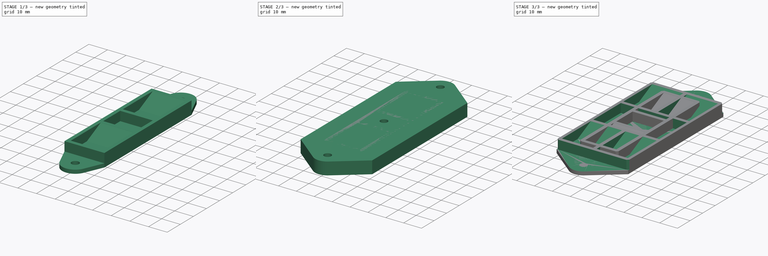
[diagram: build sequence overview — one tinted view per stage of 3, left to right]
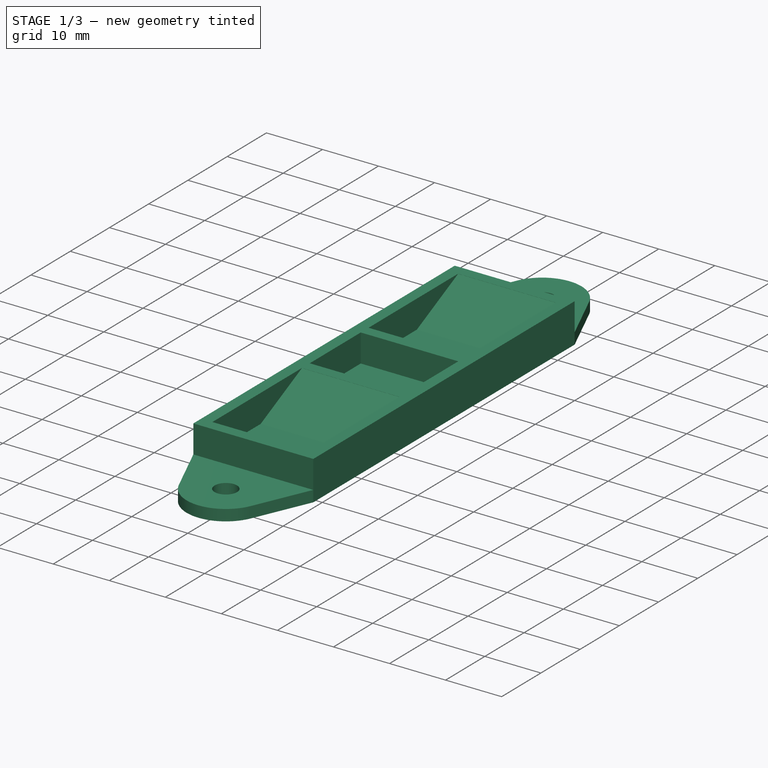
[diagram: stage 1 of 3 — iso view after this stage's code; geometry added in this stage tinted green]
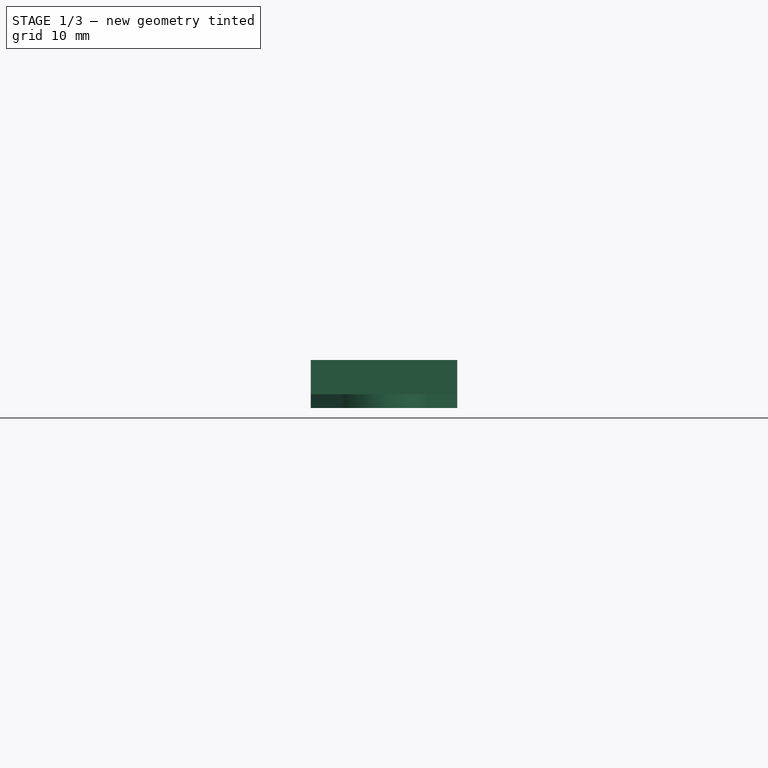
[diagram: stage 1 of 3 — front view after this stage's code; geometry added in this stage tinted green]
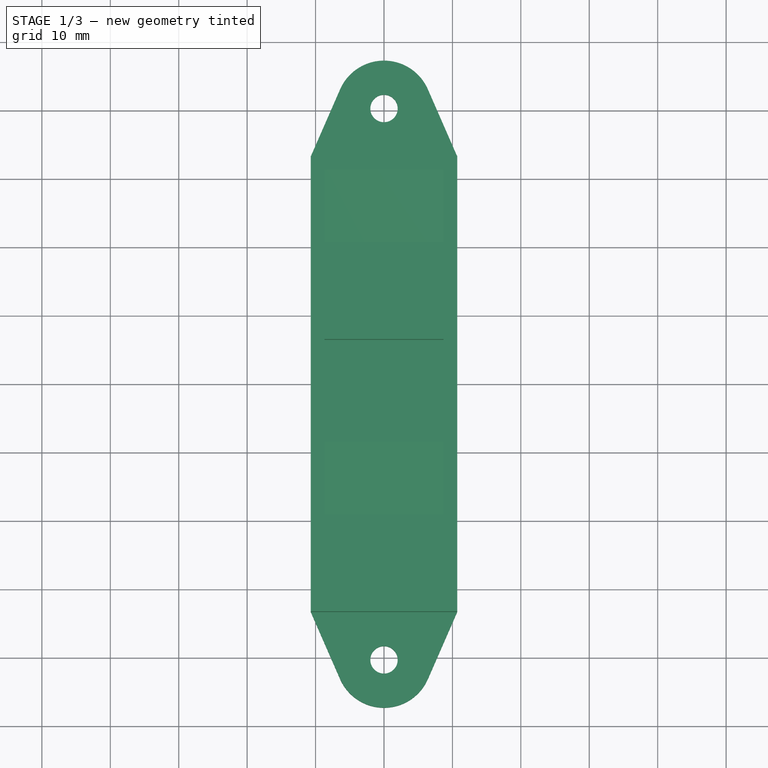
[diagram: stage 1 of 3 — top view after this stage's code; geometry added in this stage tinted green]
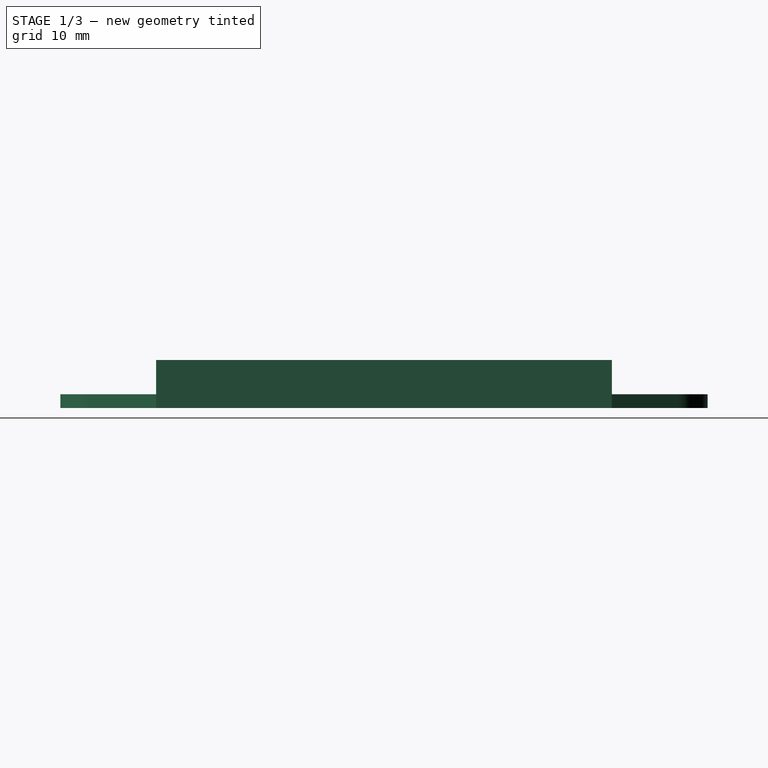
[diagram: stage 1 of 3 — right view after this stage's code; geometry added in this stage tinted green]
FCSTD DOCUMENT  (FreeCAD 0.20R29177 (Git))
Label: Spannungsverteilerplatte
License: Creative Commons Attribution
LicenseURL: http://creativecommons.org/licenses/by/4.0/
objects: Sketcher::SketchObject×4, PartDesign::Chamfer×4, PartDesign::Pad×2, PartDesign::Pocket×2, PartDesign::Body×2
note: 22 computed .brp shape members not serialized (recipe doc carries the construction recipe); baked Part::Feature solids carry a one-line shape summary decoded from their .brp

FEATURE [PartDesign::Body] Body  label="4x 3er"
  Group = -> [Sketch,Pad,Sketch001,Pocket,Chamfer,Chamfer001]
  Origin = -> Origin
  Tip = -> Chamfer001
FEATURE [Sketcher::SketchObject] Sketch002
  FullyConstrained = true
  MapMode = 5
  Support = -> [XY_Plane001]
  sketch-geometry (14):
    g0: LineSegment StartX=-10.7 StartY=33.3 StartZ=0 EndX=10.7 EndY=33.3 EndZ=0
    g1: LineSegment StartX=10.7 StartY=33.3 StartZ=0 EndX=10.7 EndY=-33.3 EndZ=0
    g2: LineSegment StartX=10.7 StartY=-33.3 StartZ=0 EndX=-10.7 EndY=-33.3 EndZ=0
    g3: LineSegment StartX=-10.7 StartY=-33.3 StartZ=0 EndX=-10.7 EndY=33.3 EndZ=0
    g4: Circle CenterX=0 CenterY=40.3 CenterZ=0 NormalX=0 NormalY=0 NormalZ=1 AngleXU=0 Radius=7
    g5: Circle CenterX=0 CenterY=-40.3 CenterZ=0 NormalX=0 NormalY=0 NormalZ=1 AngleXU=0 Radius=7
    g6: ArcOfCircle CenterX=0 CenterY=40.3 CenterZ=0 NormalX=0 NormalY=0 NormalZ=1 AngleXU=0 Radius=7 StartAngle=0.412144 EndAngle=2.72945
    g7: ArcOfCircle CenterX=0 CenterY=-40.3 CenterZ=0 NormalX=0 NormalY=0 NormalZ=1 AngleXU=0 Radius=7 StartAngle=3.55374 EndAngle=5.87104
    g8: LineSegment StartX=-6.41385 StartY=-43.104 StartZ=0 EndX=-10.7 EndY=-33.3 EndZ=0
    g9: LineSegment StartX=6.41385 StartY=-43.104 StartZ=0 EndX=10.7 EndY=-33.3 EndZ=0
    g10: LineSegment StartX=6.41385 StartY=43.104 StartZ=0 EndX=10.7 EndY=33.3 EndZ=0
    g11: LineSegment StartX=-6.41385 StartY=43.104 StartZ=0 EndX=-10.7 EndY=33.3 EndZ=0
    g12: Circle CenterX=0 CenterY=40.3 CenterZ=0 NormalX=0 NormalY=0 NormalZ=1 AngleXU=0 Radius=2
    g13: Circle CenterX=0 CenterY=-40.3 CenterZ=0 NormalX=0 NormalY=0 NormalZ=1 AngleXU=0 Radius=2
  constraints (32):
    c: Coincident(g0,g1)
    c: Coincident(g1,g2)
    c: Coincident(g2,g3)
    c: Coincident(g3,g0)
    c: Horizontal(g0)
    c: Horizontal(g2)
    c: Vertical(g1)
    c: Vertical(g3)
    c: Symmetric(g2,g0,g-1)
    c: DistanceX(g2,g2) = 21.4
    c: DistanceY(g3,g3) = 66.6
    c: PointOnObject(g4,g-2)
    c: Symmetric(g5,g4,g-1)
    c: Equal(g5,g4)
    c: Diameter(g4) = 14
    c: Tangent(g4,g0)
    c: Coincident(g6,g4)
    c: Coincident(g7,g5)
    c: Coincident(g8,g3)
    c: Coincident(g9,g1)
    c: Coincident(g10,g1)
    c: Coincident(g11,g3)
    c: Tangent(g10,g6) = 1.5708
    c: Tangent(g11,g6) = -1.5708
    c: Tangent(g9,g7) = -1.5708
    c: Tangent(g8,g7) = 1.5708
    c: Equal(g7,g5)
    c: Equal(g5,g6)
    c: Coincident(g12,g6)
    c: Coincident(g13,g7)
    c: Equal(g13,g12)
    c: Diameter(g12) = 4
FEATURE [PartDesign::Pad] Pad001
  Direction = (0,0,1)
  Length = 7
  Length2 = 10
  Profile = -> Sketch002
  ReferenceAxis = -> Sketch002 [N_Axis]
  Type = 0
FEATURE [Sketcher::SketchObject] Sketch003
  AttachmentOffset = pos=(0,0,7) rot=(0,0,1;0rad)
  ExternalGeometry = -> [Sketch002]
  FullyConstrained = true
  MapMode = 5
  Placement = pos=(0,0,7) rot=(0,0,1;0rad)
  Support = -> [XY_Plane001]
  expr: .AttachmentOffset.Base.z = Pad001.Length
  sketch-geometry (20):
    g0: LineSegment StartX=-10.7 StartY=33.3 StartZ=0 EndX=10.7 EndY=33.3 EndZ=0
    g1: LineSegment StartX=10.7 StartY=33.3 StartZ=0 EndX=10.7 EndY=47.3 EndZ=0
    g2: LineSegment StartX=10.7 StartY=47.3 StartZ=0 EndX=-10.7 EndY=47.3 EndZ=0
    g3: LineSegment StartX=-10.7 StartY=47.3 StartZ=0 EndX=-10.7 EndY=33.3 EndZ=0
    g4: LineSegment StartX=-10.7 StartY=-33.3 StartZ=0 EndX=10.7 EndY=-33.3 EndZ=0
    g5: LineSegment StartX=10.7 StartY=-33.3 StartZ=0 EndX=10.7 EndY=-47.3 EndZ=0
    g6: LineSegment StartX=10.7 StartY=-47.3 StartZ=0 EndX=-10.7 EndY=-47.3 EndZ=0
    g7: LineSegment StartX=-10.7 StartY=-47.3 StartZ=0 EndX=-10.7 EndY=-33.3 EndZ=0
    g8: LineSegment StartX=-8.7 StartY=31.3 StartZ=0 EndX=8.7 EndY=31.3 EndZ=0
    g9: LineSegment StartX=8.7 StartY=31.3 StartZ=0 EndX=8.7 EndY=8.5 EndZ=0
    g10: LineSegment StartX=8.7 StartY=8.5 StartZ=0 EndX=-8.7 EndY=8.5 EndZ=0
    g11: LineSegment StartX=-8.7 StartY=8.5 StartZ=0 EndX=-8.7 EndY=31.3 EndZ=0
    g12: LineSegment StartX=-8.7 StartY=-8.5 StartZ=0 EndX=8.7 EndY=-8.5 EndZ=0
    g13: LineSegment StartX=8.7 StartY=-8.5 StartZ=0 EndX=8.7 EndY=-31.3 EndZ=0
    g14: LineSegment StartX=8.7 StartY=-31.3 StartZ=0 EndX=-8.7 EndY=-31.3 EndZ=0
    g15: LineSegment StartX=-8.7 StartY=-31.3 StartZ=0 EndX=-8.7 EndY=-8.5 EndZ=0
    g16: LineSegment StartX=-8.7 StartY=6.5 StartZ=0 EndX=8.7 EndY=6.5 EndZ=0
    g17: LineSegment StartX=8.7 StartY=6.5 StartZ=0 EndX=8.7 EndY=-6.5 EndZ=0
    g18: LineSegment StartX=8.7 StartY=-6.5 StartZ=0 EndX=-8.7 EndY=-6.5 EndZ=0
    g19: LineSegment StartX=-8.7 StartY=-6.5 StartZ=0 EndX=-8.7 EndY=6.5 EndZ=0
  constraints (54):
    c: Coincident(g0,g1)
    c: Coincident(g1,g2)
    c: Coincident(g2,g3)
    c: Coincident(g3,g0)
    c: Horizontal(g2)
    c: Vertical(g1)
    c: Vertical(g3)
    c: Coincident(g0,g-3)
    c: Coincident(g4,g5)
    c: Coincident(g5,g6)
    c: Coincident(g6,g7)
    c: Coincident(g7,g4)
    c: Horizontal(g6)
    c: Vertical(g5)
    c: Vertical(g7)
    c: Coincident(g4,g-6)
    c: Coincident(g0,g-4)
    c: Coincident(g4,g-5)
    c: Tangent(g-8,g2)
    c: Tangent(g6,g-7)
    c: Coincident(g8,g9)
    c: Coincident(g9,g10)
    c: Coincident(g10,g11)
    c: Coincident(g11,g8)
    c: Horizontal(g8)
    c: Horizontal(g10)
    c: Vertical(g9)
    c: Vertical(g11)
    c: Coincident(g12,g13)
    c: Coincident(g13,g14)
    c: Coincident(g14,g15)
    c: Coincident(g15,g12)
    c: Horizontal(g12)
    c: Horizontal(g14)
    c: Vertical(g13)
    c: Vertical(g15)
    c: Equal(g12,g10)
    c: Equal(g11,g15)
    c: Vertical(g12,g10)
    c: Symmetric(g12,g9,g-1)
    c: DistanceY(g11,g11) = 22.8
    c: DistanceX(g8,g8) = 17.4
    c: DistanceY(g4,g14) = 2
    c: Coincident(g16,g17)
    c: Coincident(g17,g18)
    c: Coincident(g18,g19)
    c: Coincident(g19,g16)
    c: Horizontal(g16)
    c: Horizontal(g18)
    c: Vertical(g17)
    c: Vertical(g19)
    c: Symmetric(g18,g16,g-1)
    c: DistanceY(g12,g18) = 2
    c: Vertical(g18,g12)
FEATURE [PartDesign::Pocket] Pocket001
  BaseFeature = -> Pad001
  Direction = (0,0,-1)
  Length = 5
  Length2 = 5
  Profile = -> Sketch003
  ReferenceAxis = -> Sketch003 [N_Axis]
  Type = 0
FEATURE [PartDesign::Chamfer] Chamfer002
  Angle = 45
  Base = -> Pocket001 [Edge60,Edge76]
  BaseFeature = -> Pocket001
  ChamferType = 1
  FlipDirection = false
  Size = 4.98
  Size2 = 10.5
  SupportTransform = false
  UseAllEdges = false
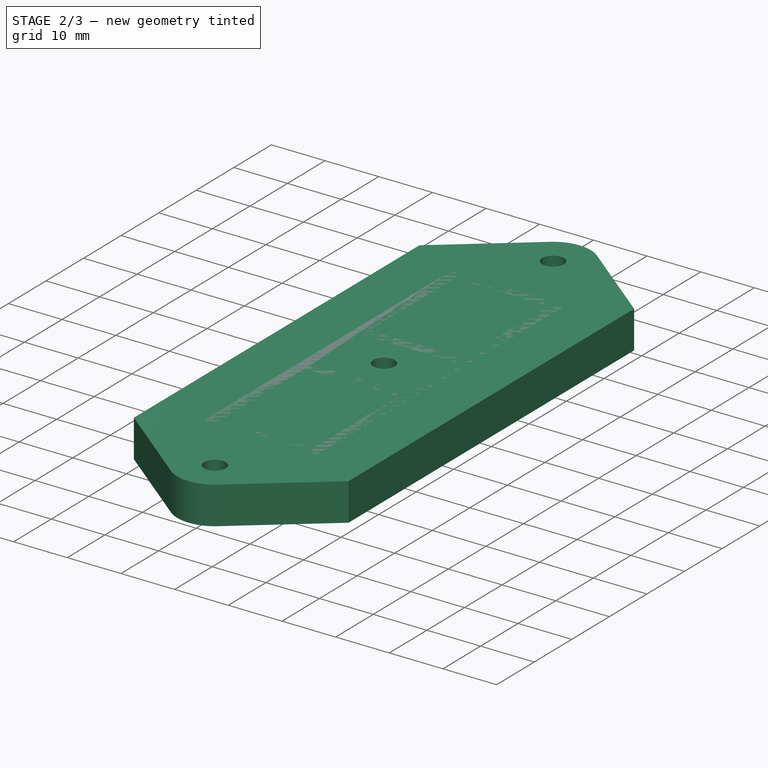
[diagram: stage 2 of 3 — iso view after this stage's code; geometry added in this stage tinted green]
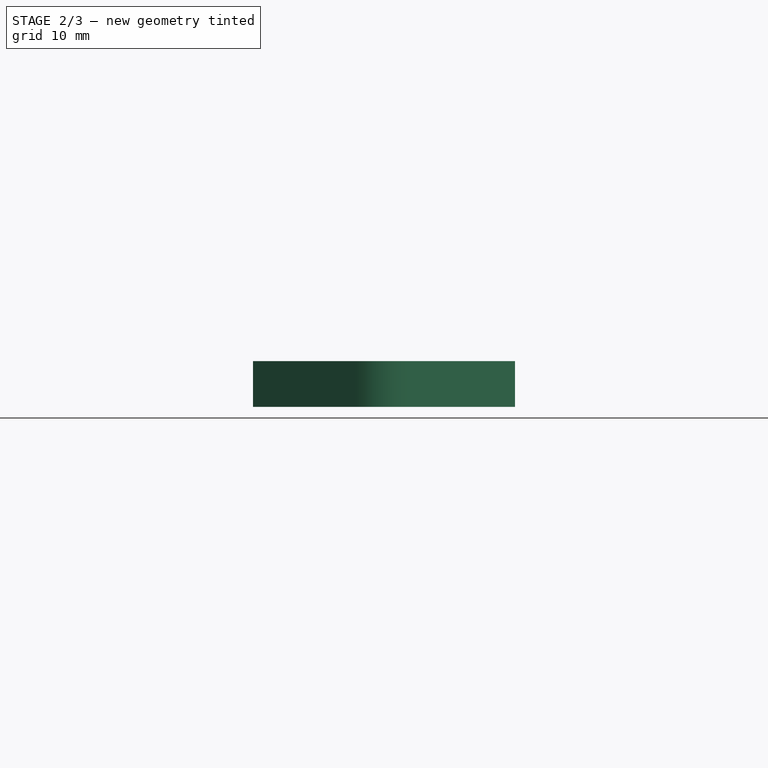
[diagram: stage 2 of 3 — front view after this stage's code; geometry added in this stage tinted green]
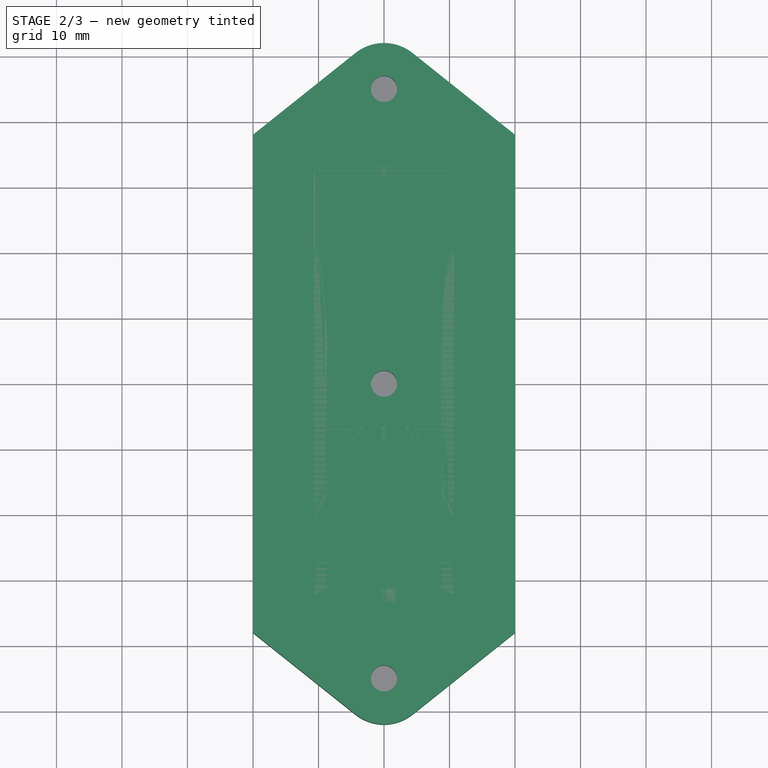
[diagram: stage 2 of 3 — top view after this stage's code; geometry added in this stage tinted green]
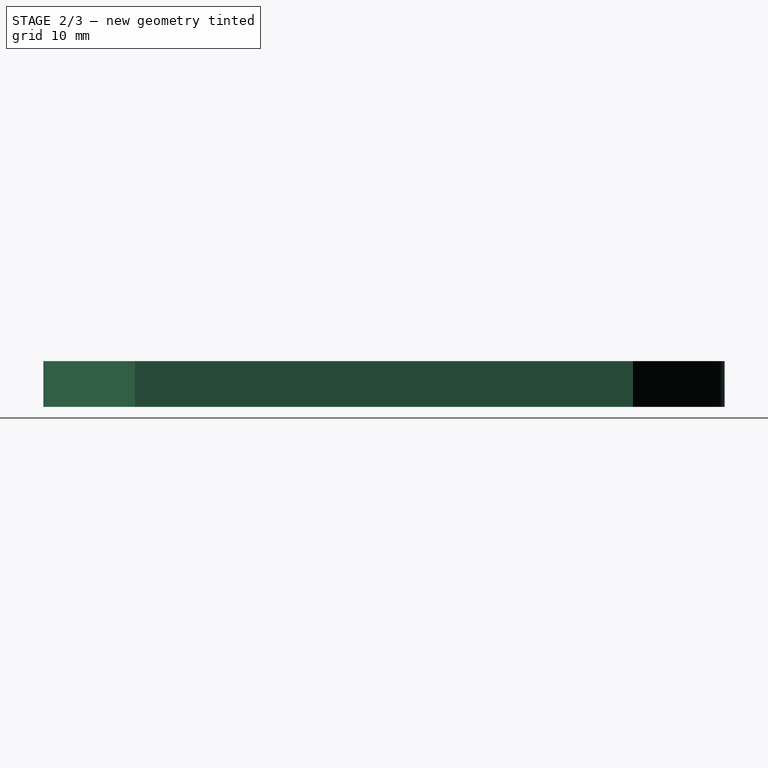
[diagram: stage 2 of 3 — right view after this stage's code; geometry added in this stage tinted green]
FEATURE [Sketcher::SketchObject] Sketch
  FullyConstrained = true
  MapMode = 5
  Support = -> [XY_Plane]
  sketch-geometry (14):
    g0: LineSegment StartX=-20 StartY=38 StartZ=0 EndX=20 EndY=38 EndZ=0
    g1: LineSegment StartX=20 StartY=38 StartZ=0 EndX=20 EndY=-38 EndZ=0
    g2: LineSegment StartX=20 StartY=-38 StartZ=0 EndX=-20 EndY=-38 EndZ=0
    g3: LineSegment StartX=-20 StartY=-38 StartZ=0 EndX=-20 EndY=38 EndZ=0
    g4: Circle CenterX=0 CenterY=-45 CenterZ=0 NormalX=0 NormalY=0 NormalZ=1 AngleXU=0 Radius=2
    g5: Circle CenterX=0 CenterY=45 CenterZ=0 NormalX=0 NormalY=0 NormalZ=1 AngleXU=0 Radius=2
    g6: Circle CenterX=0 CenterY=-45 CenterZ=0 NormalX=0 NormalY=0 NormalZ=1 AngleXU=0 Radius=7
    g7: ArcOfCircle CenterX=0 CenterY=-45 CenterZ=0 NormalX=0 NormalY=0 NormalZ=1 AngleXU=0 Radius=7 StartAngle=4.03904 EndAngle=5.38574
    g8: ArcOfCircle CenterX=0 CenterY=45 CenterZ=0 NormalX=0 NormalY=0 NormalZ=1 AngleXU=0 Radius=7 StartAngle=0.897447 EndAngle=2.24415
    g9: LineSegment StartX=-4.36526 StartY=50.4722 StartZ=0 EndX=-20 EndY=38 EndZ=0
    g10: LineSegment StartX=4.36526 StartY=50.4722 StartZ=0 EndX=20 EndY=38 EndZ=0
    g11: LineSegment StartX=-4.36526 StartY=-50.4722 StartZ=0 EndX=-20 EndY=-38 EndZ=0
    g12: LineSegment StartX=4.36526 StartY=-50.4722 StartZ=0 EndX=20 EndY=-38 EndZ=0
    g13: Circle CenterX=0 CenterY=0 CenterZ=0 NormalX=0 NormalY=0 NormalZ=1 AngleXU=0 Radius=2
  constraints (32):
    c: Coincident(g0,g1)
    c: Coincident(g1,g2)
    c: Coincident(g2,g3)
    c: Coincident(g3,g0)
    c: Horizontal(g0)
    c: Horizontal(g2)
    c: Vertical(g1)
    c: Vertical(g3)
    c: Symmetric(g2,g0,g-1)
    c: DistanceX(g0,g0) = 40
    c: DistanceY(g3,g3) = 76
    c: PointOnObject(g4,g-2)
    c: Equal(g5,g4)
    c: Symmetric(g5,g4,g-1)
    c: Diameter(g4) = 4
    c: Coincident(g6,g4)
    c: Diameter(g6) = 14
    c: Tangent(g6,g2)
    c: Coincident(g7,g4)
    c: Coincident(g8,g5)
    c: Coincident(g9,g0)
    c: Coincident(g10,g0)
    c: Coincident(g11,g2)
    c: Coincident(g12,g1)
    c: Tangent(g12,g7) = -1.5708
    c: Tangent(g11,g7) = 1.5708
    c: Tangent(g10,g8) = 1.5708
    c: Tangent(g9,g8) = -1.5708
    c: Equal(g7,g8)
    c: Equal(g8,g6)
    c: Coincident(g13,g-1)
    c: Equal(g5,g13)
FEATURE [PartDesign::Pad] Pad
  Direction = (0,0,1)
  Length = 7
  Length2 = 10
  Profile = -> Sketch
  ReferenceAxis = -> Sketch [N_Axis]
  Type = 0
FEATURE [PartDesign::Chamfer] Chamfer003
  Angle = 45
  Base = -> Chamfer002 [Edge31,Edge33,Edge29,Edge37]
  BaseFeature = -> Chamfer002
  ChamferType = 0
  FlipDirection = false
  Size = 1
  Size2 = 1
  SupportTransform = false
  UseAllEdges = false
FEATURE [PartDesign::Body] Body001  label="2x 3er"
  Group = -> [Sketch002,Pad001,Sketch003,Pocket001,Chamfer002,Chamfer003]
  Origin = -> Origin001
  Tip = -> Chamfer003
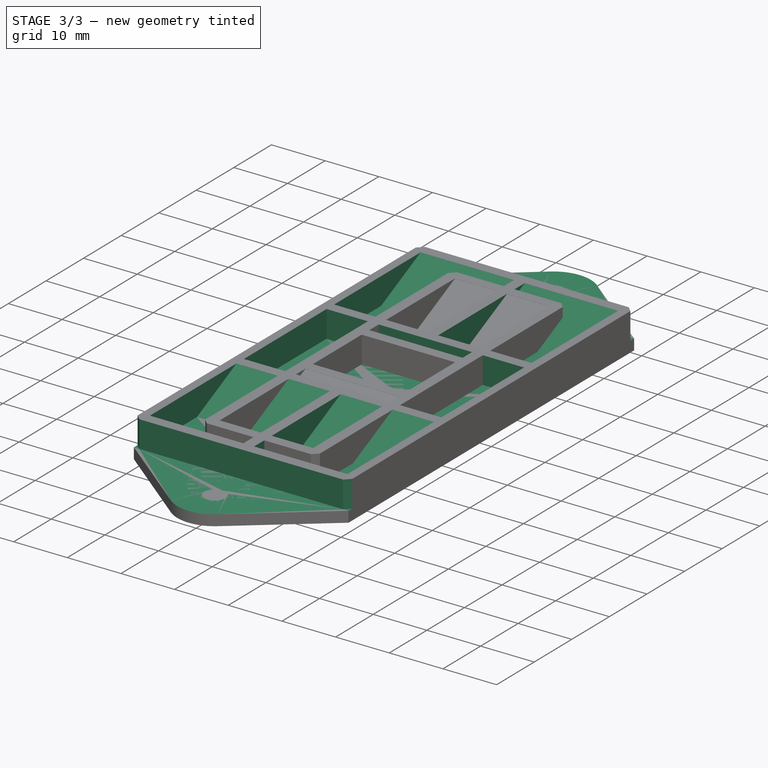
[diagram: stage 3 of 3 — iso view after this stage's code; geometry added in this stage tinted green]
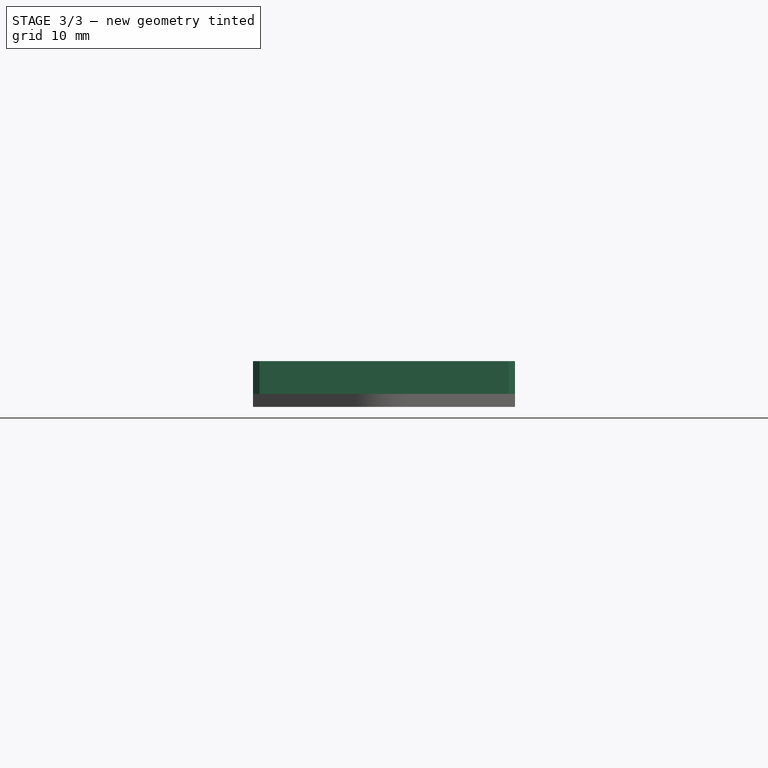
[diagram: stage 3 of 3 — front view after this stage's code; geometry added in this stage tinted green]
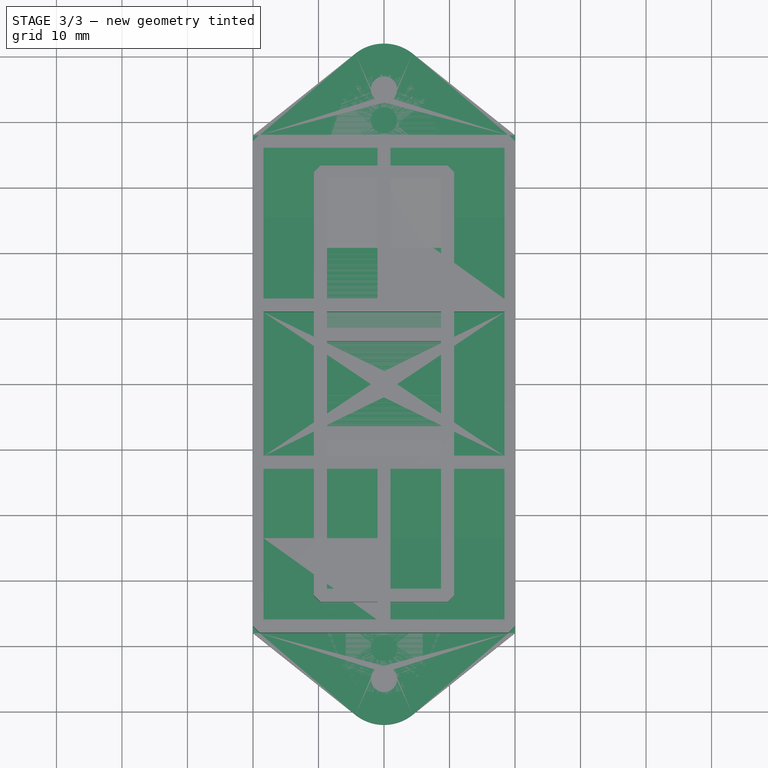
[diagram: stage 3 of 3 — top view after this stage's code; geometry added in this stage tinted green]
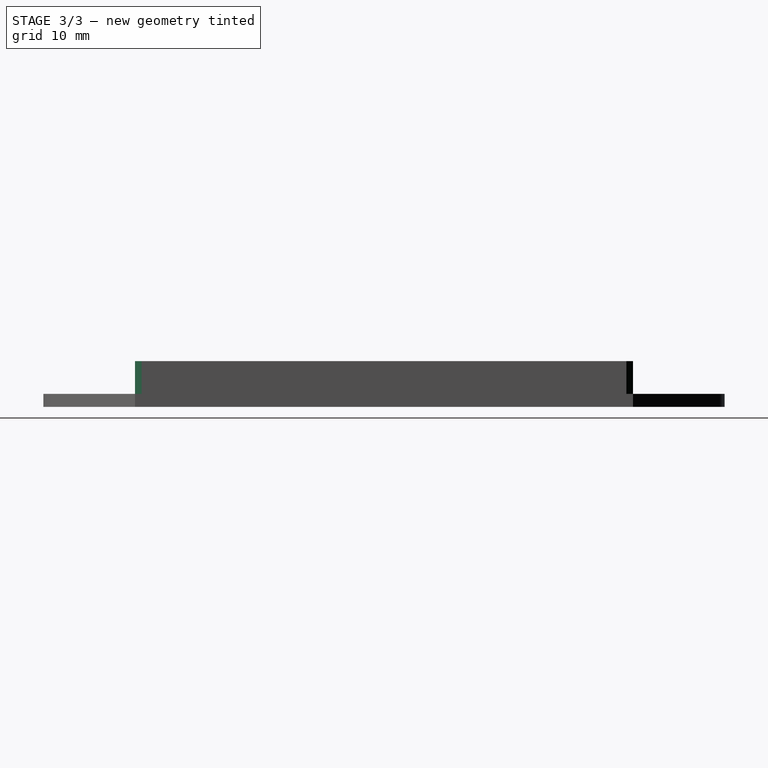
[diagram: stage 3 of 3 — right view after this stage's code; geometry added in this stage tinted green]
FEATURE [Sketcher::SketchObject] Sketch001
  AttachmentOffset = pos=(0,0,7) rot=(0,0,1;0rad)
  ExternalGeometry = -> [Sketch]
  FullyConstrained = true
  MapMode = 5
  Placement = pos=(0,0,7) rot=(0,0,1;0rad)
  Support = -> [XY_Plane]
  expr: .AttachmentOffset.Base.z = Pad.Length
  sketch-geometry (28):
    g0: LineSegment StartX=-18.4 StartY=-13 StartZ=0 EndX=-1 EndY=-13 EndZ=0
    g1: LineSegment StartX=-1 StartY=-13 StartZ=0 EndX=-1 EndY=-36 EndZ=0
    g2: LineSegment StartX=-1 StartY=-36 StartZ=0 EndX=-18.4 EndY=-36 EndZ=0
    g3: LineSegment StartX=-18.4 StartY=-36 StartZ=0 EndX=-18.4 EndY=-13 EndZ=0
    g4: LineSegment StartX=1 StartY=-13 StartZ=0 EndX=18.4 EndY=-13 EndZ=0
    g5: LineSegment StartX=18.4 StartY=-13 StartZ=0 EndX=18.4 EndY=-36 EndZ=0
    g6: LineSegment StartX=18.4 StartY=-36 StartZ=0 EndX=1 EndY=-36 EndZ=0
    g7: LineSegment StartX=1 StartY=-36 StartZ=0 EndX=1 EndY=-13 EndZ=0
    g8: LineSegment StartX=-20 StartY=38 StartZ=0 EndX=20 EndY=38 EndZ=0
    g9: LineSegment StartX=20 StartY=38 StartZ=0 EndX=20 EndY=52 EndZ=0
    g10: LineSegment StartX=20 StartY=52 StartZ=0 EndX=-20 EndY=52 EndZ=0
    g11: LineSegment StartX=-20 StartY=52 StartZ=0 EndX=-20 EndY=38 EndZ=0
    g12: LineSegment StartX=-20 StartY=-38 StartZ=0 EndX=20 EndY=-38 EndZ=0
    g13: LineSegment StartX=20 StartY=-38 StartZ=0 EndX=20 EndY=-52 EndZ=0
    g14: LineSegment StartX=20 StartY=-52 StartZ=0 EndX=-20 EndY=-52 EndZ=0
    g15: LineSegment StartX=-20 StartY=-52 StartZ=0 EndX=-20 EndY=-38 EndZ=0
    g16: LineSegment StartX=-18.4 StartY=36 StartZ=0 EndX=-1 EndY=36 EndZ=0
    g17: LineSegment StartX=-1 StartY=36 StartZ=0 EndX=-1 EndY=13 EndZ=0
    g18: LineSegment StartX=-1 StartY=13 StartZ=0 EndX=-18.4 EndY=13 EndZ=0
    g19: LineSegment StartX=-18.4 StartY=13 StartZ=0 EndX=-18.4 EndY=36 EndZ=0
    g20: LineSegment StartX=1 StartY=36 StartZ=0 EndX=18.4 EndY=36 EndZ=0
    g21: LineSegment StartX=18.4 StartY=36 StartZ=0 EndX=18.4 EndY=13 EndZ=0
    g22: LineSegment StartX=18.4 StartY=13 StartZ=0 EndX=1 EndY=13 EndZ=0
    g23: LineSegment StartX=1 StartY=13 StartZ=0 EndX=1 EndY=36 EndZ=0
    g24: LineSegment StartX=-18.4 StartY=11 StartZ=0 EndX=18.4 EndY=11 EndZ=0
    g25: LineSegment StartX=18.4 StartY=11 StartZ=0 EndX=18.4 EndY=-11 EndZ=0
    g26: LineSegment StartX=18.4 StartY=-11 StartZ=0 EndX=-18.4 EndY=-11 EndZ=0
    g27: LineSegment StartX=-18.4 StartY=-11 StartZ=0 EndX=-18.4 EndY=11 EndZ=0
  constraints (77):
    c: Coincident(g0,g1)
    c: Coincident(g1,g2)
    c: Coincident(g2,g3)
    c: Coincident(g3,g0)
    c: Horizontal(g0)
    c: Horizontal(g2)
    c: Vertical(g1)
    c: Vertical(g3)
    c: Coincident(g4,g5)
    c: Coincident(g5,g6)
    c: Coincident(g6,g7)
    c: Coincident(g7,g4)
    c: Horizontal(g4)
    c: Horizontal(g6)
    c: Vertical(g5)
    c: Vertical(g7)
    c: Coincident(g8,g9)
    c: Coincident(g9,g10)
    c: Coincident(g10,g11)
    c: Coincident(g11,g8)
    c: Horizontal(g10)
    c: Vertical(g9)
    c: Vertical(g11)
    c: Coincident(g8,g-7)
    c: Coincident(g8,g-4)
    c: Coincident(g12,g13)
    c: Coincident(g13,g14)
    c: Coincident(g14,g15)
    c: Coincident(g15,g12)
    c: Horizontal(g14)
    c: Vertical(g13)
    c: Vertical(g15)
    c: Coincident(g12,g-3)
    c: Coincident(g12,g-5)
    c: Tangent(g-6,g14)
    c: Tangent(g-8,g10)
    c: Coincident(g16,g17)
    c: Coincident(g17,g18)
    c: Coincident(g18,g19)
    c: Coincident(g19,g16)
    c: Horizontal(g16)
    c: Horizontal(g18)
    c: Vertical(g17)
    c: Vertical(g19)
    c: Coincident(g20,g21)
    c: Coincident(g21,g22)
    c: Coincident(g22,g23)
    c: Coincident(g23,g20)
    c: Horizontal(g20)
    c: Horizontal(g22)
    c: Vertical(g21)
    c: Vertical(g23)
    c: Equal(g0,g18)
    c: Equal(g18,g22)
    c: Equal(g22,g4)
    c: Equal(g17,g23)
    c: Equal(g23,g7)
    c: Equal(g7,g1)
    c: Horizontal(g16,g20)
    c: Vertical(g21,g4)
    c: Symmetric(g0,g4,g-2)
    c: DistanceY(g12,g2) = 2
    c: Symmetric(g2,g16,g-1)
    c: DistanceX(g6,g6) = 17.4
    c: DistanceX(g0,g4) = 2
    c: DistanceY(g5,g5) = 23
    c: Coincident(g24,g25)
    c: Coincident(g25,g26)
    c: Coincident(g26,g27)
    c: Coincident(g27,g24)
    c: Horizontal(g24)
    c: Horizontal(g26)
    c: Vertical(g25)
    c: Vertical(g27)
    c: Symmetric(g26,g24,g-1)
    c: Vertical(g4,g25)
    c: DistanceY(g24,g18) = 2
FEATURE [PartDesign::Pocket] Pocket
  BaseFeature = -> Pad
  Direction = (0,0,-1)
  Length = 5
  Length2 = 5
  Profile = -> Sketch001
  ReferenceAxis = -> Sketch001 [N_Axis]
  Type = 0
FEATURE [PartDesign::Chamfer] Chamfer
  Angle = 45
  Base = -> Pocket [Edge75,Edge83,Edge103,Edge95]
  BaseFeature = -> Pocket
  ChamferType = 1
  FlipDirection = false
  Size = 4.98
  Size2 = 10.5
  SupportTransform = false
  UseAllEdges = false
FEATURE [PartDesign::Chamfer] Chamfer001
  Angle = 45
  Base = -> Chamfer [Edge45,Edge37,Edge39,Edge41]
  BaseFeature = -> Chamfer
  ChamferType = 0
  FlipDirection = false
  Size = 1
  Size2 = 1
  SupportTransform = false
  UseAllEdges = false
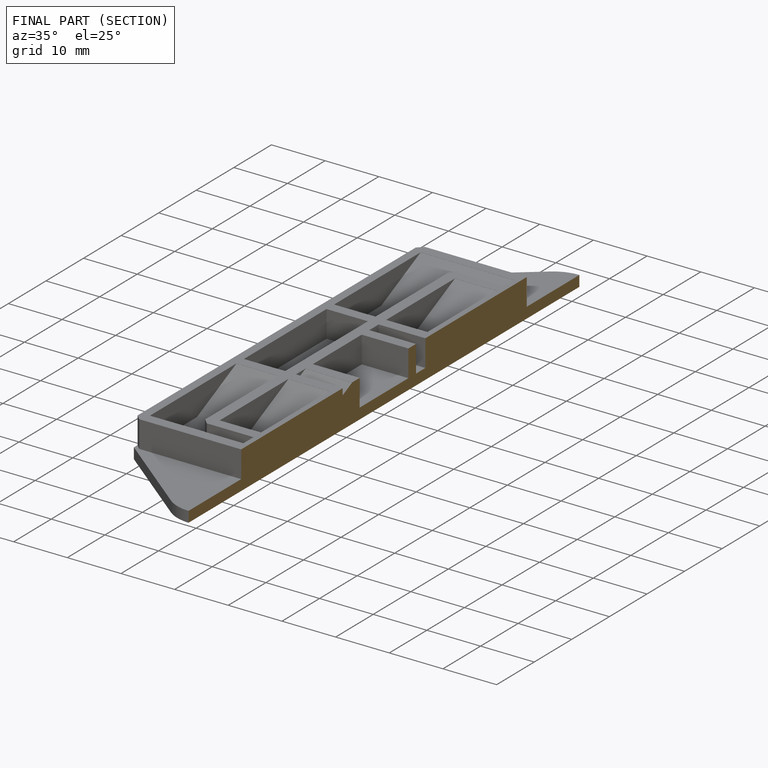
[diagram: finished part — half-section view (interior)]
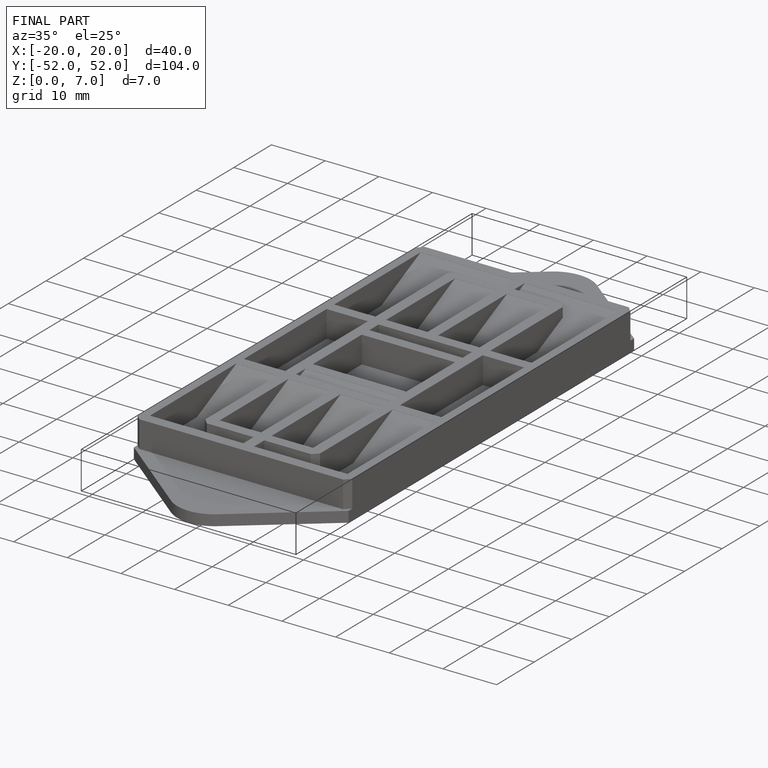
[diagram: finished part — iso view with bounding-box wireframe]
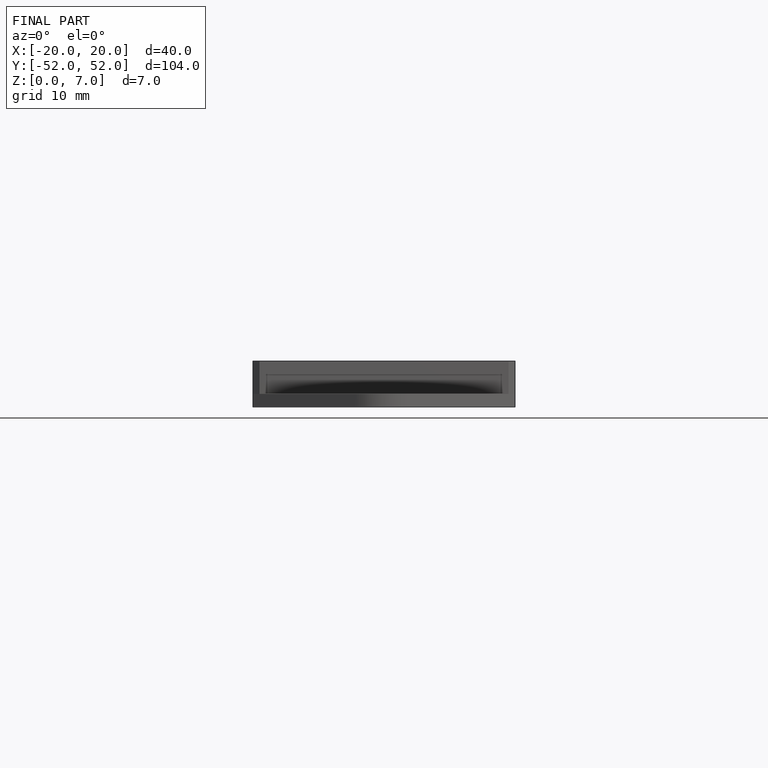
[diagram: finished part — front view with bounding-box wireframe]
